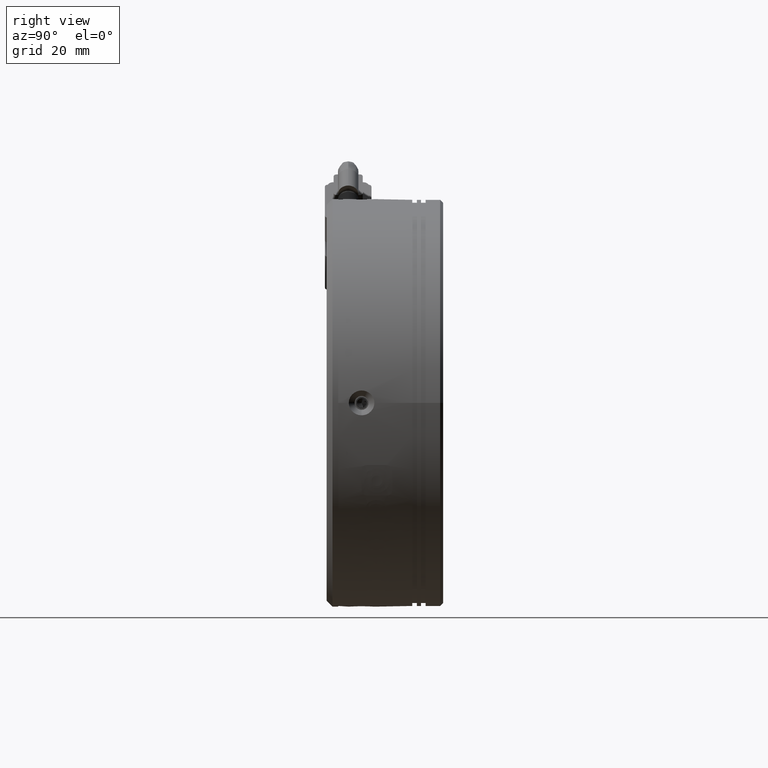
[diagram: clean part render]
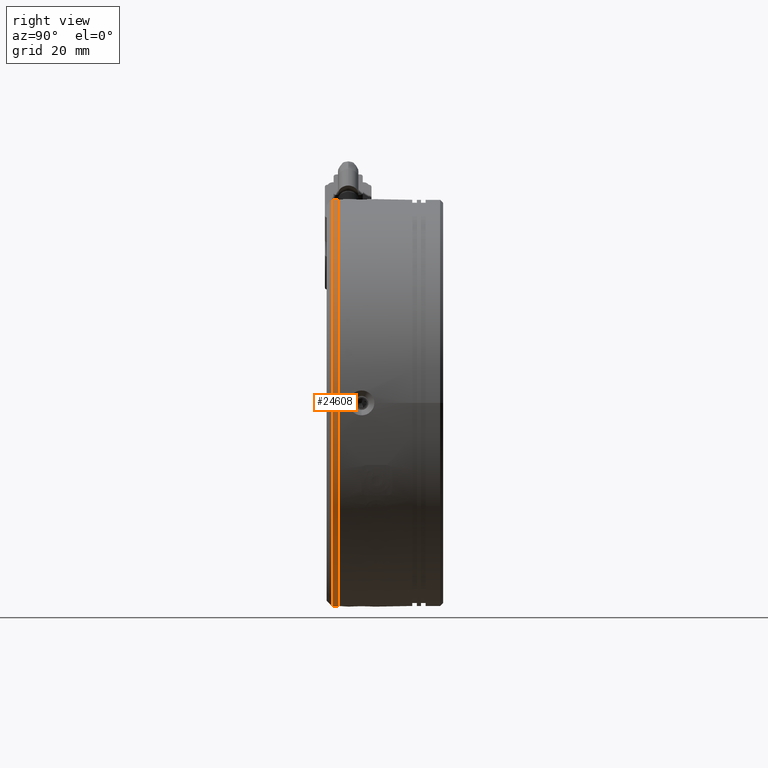
[diagram: same view with one face highlighted and labeled with its STEP entity id]
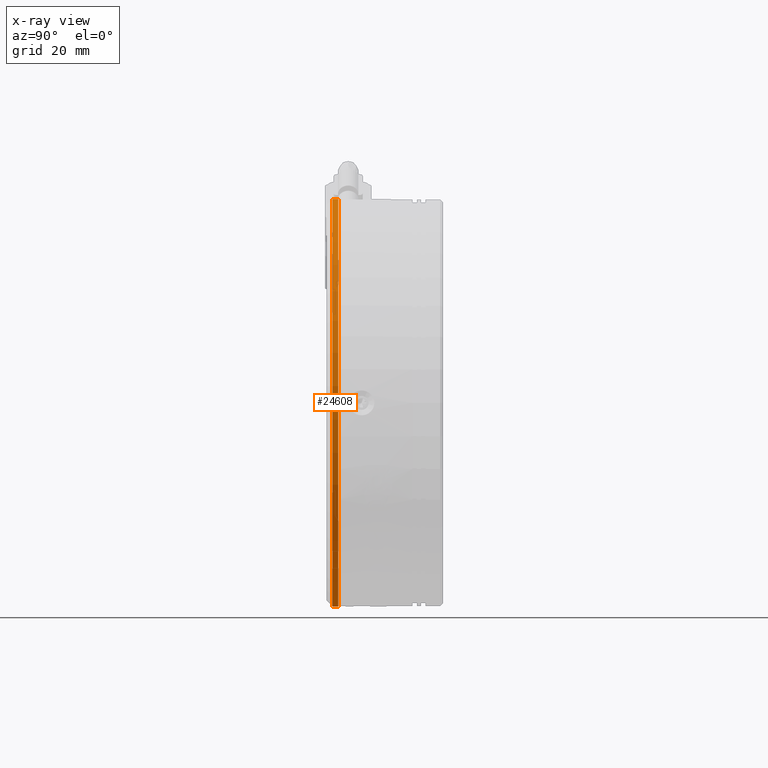
[diagram: x-ray of the same camera — body ghosted, the highlighted face saturated]
A machine part, right view. The second image highlights one B-rep face of the part: STEP entity #24608.
The next image is the same camera in x-ray: the body ghosted, the highlighted face saturated — about 0% of this face is hidden behind the body in this view.
In plain terms, the highlighted cylindrical surface (partial cylindrical patch) has radius 35 mm, axis along (-0, 1, -0).
Its self-contained STEP definition (entity closure, byte-faithful):
#1705 = VECTOR ( 'NONE', #69699, 1000.000000000000000 ) ;
#1913 = CARTESIAN_POINT ( 'NONE',  ( -3.499229287090538600, 49.67432128801908700, 34.99999999999999300 ) ) ;
#2784 = FACE_OUTER_BOUND ( 'NONE', #69924, .T. ) ;
#6014 = CIRCLE ( 'NONE', #88457, 34.99999999999999300 ) ;
#8030 = VERTEX_POINT ( 'NONE', #73250 ) ;
#8967 = DIRECTION ( 'NONE',  ( -0.0000000000000000000, 1.000000000000000000, -0.0000000000000000000 ) ) ;
#13085 = ORIENTED_EDGE ( 'NONE', *, *, #21757, .F. ) ;
#13613 = VERTEX_POINT ( 'NONE', #13766 ) ;
#13750 = DIRECTION ( 'NONE',  ( 0.0000000000000000000, -1.000000000000000000, 0.0000000000000000000 ) ) ;
#13766 = CARTESIAN_POINT ( 'NONE',  ( -3.499229287090534200, 32.07623868994506500, -34.99999999999999300 ) ) ;
#20810 = CARTESIAN_POINT ( 'NONE',  ( -3.499229287090534200, 49.67432128801908700, -34.99999999999999300 ) ) ;
#21757 = EDGE_CURVE ( 'NONE', #13613, #8030, #87534, .T. ) ;
#24608 = ADVANCED_FACE ( 'NONE', ( #2784 ), #49705, .T. ) ;
#26819 = CARTESIAN_POINT ( 'NONE',  ( -3.499229287090538600, 49.67432128801908700, 0.0000000000000000000 ) ) ;
#32174 = AXIS2_PLACEMENT_3D ( 'NONE', #55541, #13750, #62595 ) ;
#32185 = LINE ( 'NONE', #1913, #50766 ) ;
#32789 = EDGE_CURVE ( 'NONE', #8030, #81988, #32185, .T. ) ;
#34369 = ORIENTED_EDGE ( 'NONE', *, *, #73382, .T. ) ;
#35707 = DIRECTION ( 'NONE',  ( 0.0000000000000000000, -1.000000000000000000, 0.0000000000000000000 ) ) ;
#38131 = AXIS2_PLACEMENT_3D ( 'NONE', #26819, #54611, #68944 ) ;
#38845 = LINE ( 'NONE', #20810, #1705 ) ;
#49705 = CYLINDRICAL_SURFACE ( 'NONE', #38131, 34.99999999999999300 ) ;
#50766 = VECTOR ( 'NONE', #8967, 1000.000000000000000 ) ;
#54611 = DIRECTION ( 'NONE',  ( -0.0000000000000000000, 1.000000000000000000, -0.0000000000000000000 ) ) ;
#55541 = CARTESIAN_POINT ( 'NONE',  ( -3.499229287090538600, 32.07623868994506500, 0.0000000000000000000 ) ) ;
#62595 = DIRECTION ( 'NONE',  ( 0.0000000000000000000, 0.0000000000000000000, 1.000000000000000000 ) ) ;
#68944 = DIRECTION ( 'NONE',  ( 0.0000000000000000000, 0.0000000000000000000, 1.000000000000000000 ) ) ;
#69142 = ORIENTED_EDGE ( 'NONE', *, *, #86177, .T. ) ;
#69699 = DIRECTION ( 'NONE',  ( -0.0000000000000000000, 1.000000000000000000, -0.0000000000000000000 ) ) ;
#69924 = EDGE_LOOP ( 'NONE', ( #13085, #69142, #34369, #81092 ) ) ;
#71255 = VERTEX_POINT ( 'NONE', #87370 ) ;
#73250 = CARTESIAN_POINT ( 'NONE',  ( -3.499229287090538600, 32.07623868994506500, 34.99999999999999300 ) ) ;
#73382 = EDGE_CURVE ( 'NONE', #71255, #81988, #6014, .T. ) ;
#77553 = CARTESIAN_POINT ( 'NONE',  ( -3.499229287090538600, 33.07623868994505000, 0.0000000000000000000 ) ) ;
#81092 = ORIENTED_EDGE ( 'NONE', *, *, #32789, .F. ) ;
#81349 = CARTESIAN_POINT ( 'NONE',  ( -3.499229287090538600, 33.07623868994505000, 34.99999999999999300 ) ) ;
#81988 = VERTEX_POINT ( 'NONE', #81349 ) ;
#84492 = DIRECTION ( 'NONE',  ( 0.0000000000000000000, 0.0000000000000000000, 1.000000000000000000 ) ) ;
#86177 = EDGE_CURVE ( 'NONE', #13613, #71255, #38845, .T. ) ;
#87370 = CARTESIAN_POINT ( 'NONE',  ( -3.499229287090534200, 33.07623868994505000, -34.99999999999999300 ) ) ;
#87534 = CIRCLE ( 'NONE', #32174, 34.99999999999999300 ) ;
#88457 = AXIS2_PLACEMENT_3D ( 'NONE', #77553, #35707, #84492 ) ;